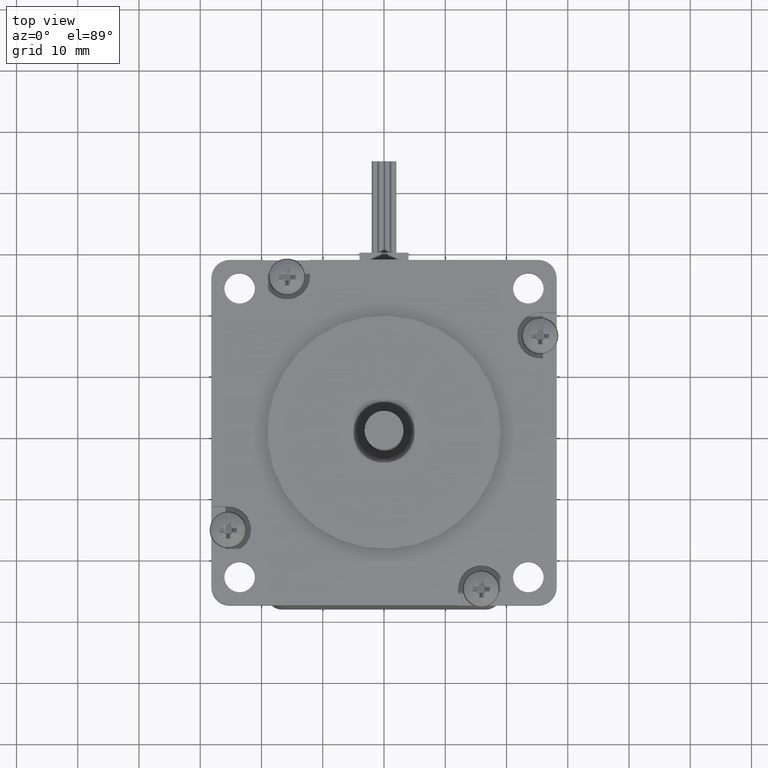
[diagram: clean part render]
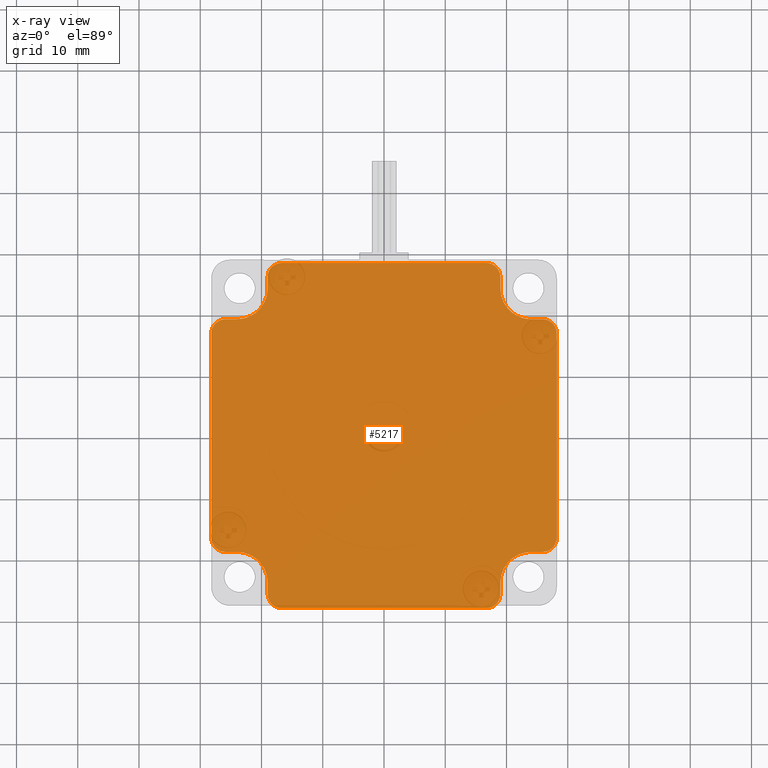
[diagram: x-ray — body ghosted, one internal face saturated and labeled with its STEP entity id]
A machine part, top view, then the same camera in x-ray: the body is ghosted and one INTERNAL B-rep face — a face not visible from any outside direction — is saturated and labeled: STEP entity #5217.
In plain terms, the highlighted planar face has unit normal (0, 0, -1).
Its self-contained STEP definition (entity closure, byte-faithful):
#279=LINE('',#8132,#645);
#282=LINE('',#8138,#648);
#283=LINE('',#8142,#649);
#284=LINE('',#8146,#650);
#285=LINE('',#8150,#651);
#286=LINE('',#8154,#652);
#287=LINE('',#8158,#653);
#288=LINE('',#8162,#654);
#289=LINE('',#8166,#655);
#290=LINE('',#8170,#656);
#291=LINE('',#8174,#657);
#292=LINE('',#8178,#658);
#645=VECTOR('',#6498,10.);
#648=VECTOR('',#6503,10.);
#649=VECTOR('',#6506,10.);
#650=VECTOR('',#6509,10.);
#651=VECTOR('',#6512,10.);
#652=VECTOR('',#6515,10.);
#653=VECTOR('',#6518,10.);
#654=VECTOR('',#6521,10.);
#655=VECTOR('',#6524,10.);
#656=VECTOR('',#6527,10.);
#657=VECTOR('',#6530,10.);
#658=VECTOR('',#6533,10.);
#940=PLANE('',#5618);
#1205=FACE_OUTER_BOUND('',#1555,.T.);
#1555=EDGE_LOOP('',(#3751,#3752,#3753,#3754,#3755,#3756,#3757,#3758,#3759,
#3760,#3761,#3762,#3763,#3764,#3765,#3766,#3767,#3768,#3769,#3770,#3771,
#3772,#3773,#3774));
#1909=CIRCLE('',#5615,2.3);
#1911=CIRCLE('',#5619,5.);
#1912=CIRCLE('',#5620,2.3);
#1913=CIRCLE('',#5621,2.3);
#1914=CIRCLE('',#5622,5.);
#1915=CIRCLE('',#5623,2.3);
#1916=CIRCLE('',#5624,2.3);
#1917=CIRCLE('',#5625,5.);
#1918=CIRCLE('',#5626,2.3);
#1919=CIRCLE('',#5627,2.3);
#1920=CIRCLE('',#5628,5.);
#1921=CIRCLE('',#5629,2.3);
#2269=VERTEX_POINT('',#8122);
#2270=VERTEX_POINT('',#8123);
#2273=VERTEX_POINT('',#8131);
#2275=VERTEX_POINT('',#8137);
#2276=VERTEX_POINT('',#8139);
#2277=VERTEX_POINT('',#8141);
#2278=VERTEX_POINT('',#8143);
#2279=VERTEX_POINT('',#8145);
#2280=VERTEX_POINT('',#8147);
#2281=VERTEX_POINT('',#8149);
#2282=VERTEX_POINT('',#8151);
#2283=VERTEX_POINT('',#8153);
#2284=VERTEX_POINT('',#8155);
#2285=VERTEX_POINT('',#8157);
#2286=VERTEX_POINT('',#8159);
#2287=VERTEX_POINT('',#8161);
#2288=VERTEX_POINT('',#8163);
#2289=VERTEX_POINT('',#8165);
#2290=VERTEX_POINT('',#8167);
#2291=VERTEX_POINT('',#8169);
#2292=VERTEX_POINT('',#8171);
#2293=VERTEX_POINT('',#8173);
#2294=VERTEX_POINT('',#8175);
#2295=VERTEX_POINT('',#8177);
#2825=EDGE_CURVE('',#2269,#2270,#1909,.T.);
#2829=EDGE_CURVE('',#2270,#2273,#279,.T.);
#2832=EDGE_CURVE('',#2269,#2275,#282,.T.);
#2833=EDGE_CURVE('',#2275,#2276,#1911,.T.);
#2834=EDGE_CURVE('',#2276,#2277,#283,.T.);
#2835=EDGE_CURVE('',#2278,#2277,#1912,.T.);
#2836=EDGE_CURVE('',#2279,#2278,#284,.T.);
#2837=EDGE_CURVE('',#2280,#2279,#1913,.T.);
#2838=EDGE_CURVE('',#2280,#2281,#285,.T.);
#2839=EDGE_CURVE('',#2281,#2282,#1914,.T.);
#2840=EDGE_CURVE('',#2282,#2283,#286,.T.);
#2841=EDGE_CURVE('',#2284,#2283,#1915,.T.);
#2842=EDGE_CURVE('',#2285,#2284,#287,.T.);
#2843=EDGE_CURVE('',#2286,#2285,#1916,.T.);
#2844=EDGE_CURVE('',#2286,#2287,#288,.T.);
#2845=EDGE_CURVE('',#2287,#2288,#1917,.T.);
#2846=EDGE_CURVE('',#2288,#2289,#289,.T.);
#2847=EDGE_CURVE('',#2290,#2289,#1918,.T.);
#2848=EDGE_CURVE('',#2291,#2290,#290,.T.);
#2849=EDGE_CURVE('',#2292,#2291,#1919,.T.);
#2850=EDGE_CURVE('',#2292,#2293,#291,.T.);
#2851=EDGE_CURVE('',#2293,#2294,#1920,.T.);
#2852=EDGE_CURVE('',#2294,#2295,#292,.T.);
#2853=EDGE_CURVE('',#2273,#2295,#1921,.T.);
#3751=ORIENTED_EDGE('',*,*,#2825,.F.);
#3752=ORIENTED_EDGE('',*,*,#2832,.T.);
#3753=ORIENTED_EDGE('',*,*,#2833,.T.);
#3754=ORIENTED_EDGE('',*,*,#2834,.T.);
#3755=ORIENTED_EDGE('',*,*,#2835,.F.);
#3756=ORIENTED_EDGE('',*,*,#2836,.F.);
#3757=ORIENTED_EDGE('',*,*,#2837,.F.);
#3758=ORIENTED_EDGE('',*,*,#2838,.T.);
#3759=ORIENTED_EDGE('',*,*,#2839,.T.);
#3760=ORIENTED_EDGE('',*,*,#2840,.T.);
#3761=ORIENTED_EDGE('',*,*,#2841,.F.);
#3762=ORIENTED_EDGE('',*,*,#2842,.F.);
#3763=ORIENTED_EDGE('',*,*,#2843,.F.);
#3764=ORIENTED_EDGE('',*,*,#2844,.T.);
#3765=ORIENTED_EDGE('',*,*,#2845,.T.);
#3766=ORIENTED_EDGE('',*,*,#2846,.T.);
#3767=ORIENTED_EDGE('',*,*,#2847,.F.);
#3768=ORIENTED_EDGE('',*,*,#2848,.F.);
#3769=ORIENTED_EDGE('',*,*,#2849,.F.);
#3770=ORIENTED_EDGE('',*,*,#2850,.T.);
#3771=ORIENTED_EDGE('',*,*,#2851,.T.);
#3772=ORIENTED_EDGE('',*,*,#2852,.T.);
#3773=ORIENTED_EDGE('',*,*,#2853,.F.);
#3774=ORIENTED_EDGE('',*,*,#2829,.F.);
#5217=ADVANCED_FACE('',(#1205),#940,.T.);
#5615=AXIS2_PLACEMENT_3D('',#8124,#6490,#6491);
#5618=AXIS2_PLACEMENT_3D('',#8136,#6501,#6502);
#5619=AXIS2_PLACEMENT_3D('',#8140,#6504,#6505);
#5620=AXIS2_PLACEMENT_3D('',#8144,#6507,#6508);
#5621=AXIS2_PLACEMENT_3D('',#8148,#6510,#6511);
#5622=AXIS2_PLACEMENT_3D('',#8152,#6513,#6514);
#5623=AXIS2_PLACEMENT_3D('',#8156,#6516,#6517);
#5624=AXIS2_PLACEMENT_3D('',#8160,#6519,#6520);
#5625=AXIS2_PLACEMENT_3D('',#8164,#6522,#6523);
#5626=AXIS2_PLACEMENT_3D('',#8168,#6525,#6526);
#5627=AXIS2_PLACEMENT_3D('',#8172,#6528,#6529);
#5628=AXIS2_PLACEMENT_3D('',#8176,#6531,#6532);
#5629=AXIS2_PLACEMENT_3D('',#8179,#6534,#6535);
#6490=DIRECTION('center_axis',(0.,0.,1.));
#6491=DIRECTION('ref_axis',(-0.707106781186547,0.707106781186548,0.));
#6498=DIRECTION('',(0.,-1.,0.));
#6501=DIRECTION('center_axis',(0.,0.,-1.));
#6502=DIRECTION('ref_axis',(1.,0.,0.));
#6503=DIRECTION('',(1.,6.12323399573677E-17,0.));
#6504=DIRECTION('center_axis',(0.,0.,1.));
#6505=DIRECTION('ref_axis',(-1.,-6.12323399573677E-17,0.));
#6506=DIRECTION('',(9.45496501397263E-15,1.,0.));
#6507=DIRECTION('center_axis',(0.,0.,1.));
#6508=DIRECTION('ref_axis',(-0.707106781186543,0.707106781186552,0.));
#6509=DIRECTION('',(-1.,0.,0.));
#6510=DIRECTION('center_axis',(0.,0.,1.));
#6511=DIRECTION('ref_axis',(0.707106781186548,0.707106781186547,0.));
#6512=DIRECTION('',(1.22464679914735E-16,-1.,0.));
#6513=DIRECTION('center_axis',(0.,0.,1.));
#6514=DIRECTION('ref_axis',(-1.22464679914735E-16,1.,0.));
#6515=DIRECTION('',(1.,-9.39373267401526E-15,0.));
#6516=DIRECTION('center_axis',(0.,0.,1.));
#6517=DIRECTION('ref_axis',(0.707106781186551,0.707106781186544,0.));
#6518=DIRECTION('',(0.,1.,0.));
#6519=DIRECTION('center_axis',(0.,0.,1.));
#6520=DIRECTION('ref_axis',(0.707106781186548,-0.707106781186547,0.));
#6521=DIRECTION('',(-1.,-1.83697019872103E-16,0.));
#6522=DIRECTION('center_axis',(0.,0.,1.));
#6523=DIRECTION('ref_axis',(1.,1.83697019872103E-16,0.));
#6524=DIRECTION('',(-9.33250033405789E-15,-1.,0.));
#6525=DIRECTION('center_axis',(0.,0.,1.));
#6526=DIRECTION('ref_axis',(0.707106781186544,-0.707106781186551,0.));
#6527=DIRECTION('',(1.,0.,0.));
#6528=DIRECTION('center_axis',(0.,0.,1.));
#6529=DIRECTION('ref_axis',(-0.707106781186548,-0.707106781186547,0.));
#6530=DIRECTION('',(0.,1.,0.));
#6531=DIRECTION('center_axis',(0.,0.,1.));
#6532=DIRECTION('ref_axis',(0.,-1.,0.));
#6533=DIRECTION('',(-1.,9.51619735393E-15,0.));
#6534=DIRECTION('center_axis',(0.,0.,1.));
#6535=DIRECTION('ref_axis',(-0.707106781186551,-0.707106781186544,0.));
#8122=CARTESIAN_POINT('',(-25.9,19.,-24.2999999949336));
#8123=CARTESIAN_POINT('',(-28.2,16.7,-24.2999999949336));
#8124=CARTESIAN_POINT('Origin',(-25.9,16.7,-24.2999999949336));
#8131=CARTESIAN_POINT('',(-28.2,-16.7,-24.2999999949336));
#8132=CARTESIAN_POINT('',(-28.2,28.2,-24.2999999949336));
#8136=CARTESIAN_POINT('Origin',(-1.99840144432528E-14,-1.77635683940025E-14,
-24.2999999949336));
#8137=CARTESIAN_POINT('',(-24.,19.,-24.2999999949336));
#8138=CARTESIAN_POINT('',(-12.,19.,-24.2999999949336));
#8139=CARTESIAN_POINT('',(-19.,24.,-24.2999999949336));
#8140=CARTESIAN_POINT('Origin',(-24.,24.,-24.2999999949336));
#8141=CARTESIAN_POINT('',(-19.,25.9,-24.2999999949336));
#8142=CARTESIAN_POINT('',(-19.0000000000001,12.7000000000001,-24.2999999949336));
#8143=CARTESIAN_POINT('',(-16.7,28.2,-24.2999999949336));
#8144=CARTESIAN_POINT('Origin',(-16.7,25.9,-24.2999999949336));
#8145=CARTESIAN_POINT('',(16.7,28.2,-24.2999999949336));
#8146=CARTESIAN_POINT('',(28.2,28.2,-24.2999999949336));
#8147=CARTESIAN_POINT('',(19.,25.9,-24.2999999949336));
#8148=CARTESIAN_POINT('Origin',(16.7,25.9,-24.2999999949336));
#8149=CARTESIAN_POINT('',(19.,24.,-24.2999999949336));
#8150=CARTESIAN_POINT('',(19.,12.,-24.2999999949336));
#8151=CARTESIAN_POINT('',(24.,19.,-24.2999999949336));
#8152=CARTESIAN_POINT('Origin',(24.,24.,-24.2999999949336));
#8153=CARTESIAN_POINT('',(25.9,19.,-24.2999999949336));
#8154=CARTESIAN_POINT('',(12.7000000000001,19.0000000000001,-24.2999999949336));
#8155=CARTESIAN_POINT('',(28.2,16.7,-24.2999999949336));
#8156=CARTESIAN_POINT('Origin',(25.9,16.7,-24.2999999949336));
#8157=CARTESIAN_POINT('',(28.2,-16.7,-24.2999999949336));
#8158=CARTESIAN_POINT('',(28.2,-28.2,-24.2999999949336));
#8159=CARTESIAN_POINT('',(25.9,-19.,-24.2999999949336));
#8160=CARTESIAN_POINT('Origin',(25.9,-16.7,-24.2999999949336));
#8161=CARTESIAN_POINT('',(24.,-19.,-24.2999999949336));
#8162=CARTESIAN_POINT('',(12.,-19.,-24.2999999949336));
#8163=CARTESIAN_POINT('',(19.,-24.,-24.2999999949336));
#8164=CARTESIAN_POINT('Origin',(24.,-24.,-24.2999999949336));
#8165=CARTESIAN_POINT('',(19.,-25.9,-24.2999999949336));
#8166=CARTESIAN_POINT('',(19.0000000000001,-12.7000000000001,-24.2999999949336));
#8167=CARTESIAN_POINT('',(16.7,-28.2,-24.2999999949336));
#8168=CARTESIAN_POINT('Origin',(16.7,-25.9,-24.2999999949336));
#8169=CARTESIAN_POINT('',(-16.7,-28.2,-24.2999999949336));
#8170=CARTESIAN_POINT('',(-28.2,-28.2,-24.2999999949336));
#8171=CARTESIAN_POINT('',(-19.,-25.9,-24.2999999949336));
#8172=CARTESIAN_POINT('Origin',(-16.7,-25.9,-24.2999999949336));
#8173=CARTESIAN_POINT('',(-19.,-24.,-24.2999999949336));
#8174=CARTESIAN_POINT('',(-19.,-12.,-24.2999999949336));
#8175=CARTESIAN_POINT('',(-24.,-19.,-24.2999999949336));
#8176=CARTESIAN_POINT('Origin',(-24.,-24.,-24.2999999949336));
#8177=CARTESIAN_POINT('',(-25.9,-19.,-24.2999999949336));
#8178=CARTESIAN_POINT('',(-12.7000000000001,-19.0000000000001,-24.2999999949336));
#8179=CARTESIAN_POINT('Origin',(-25.9,-16.7,-24.2999999949336));